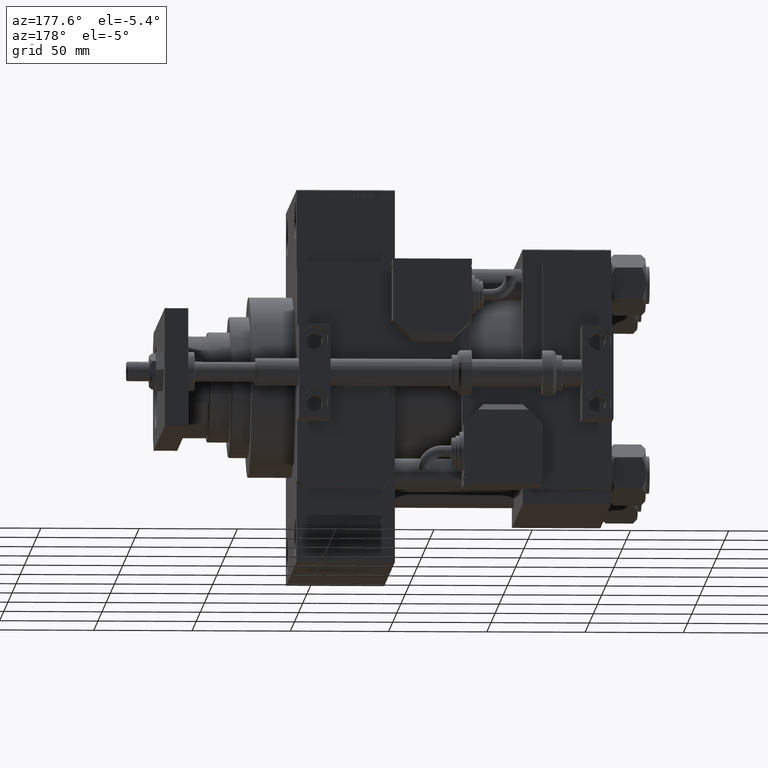
[diagram: clean part render]
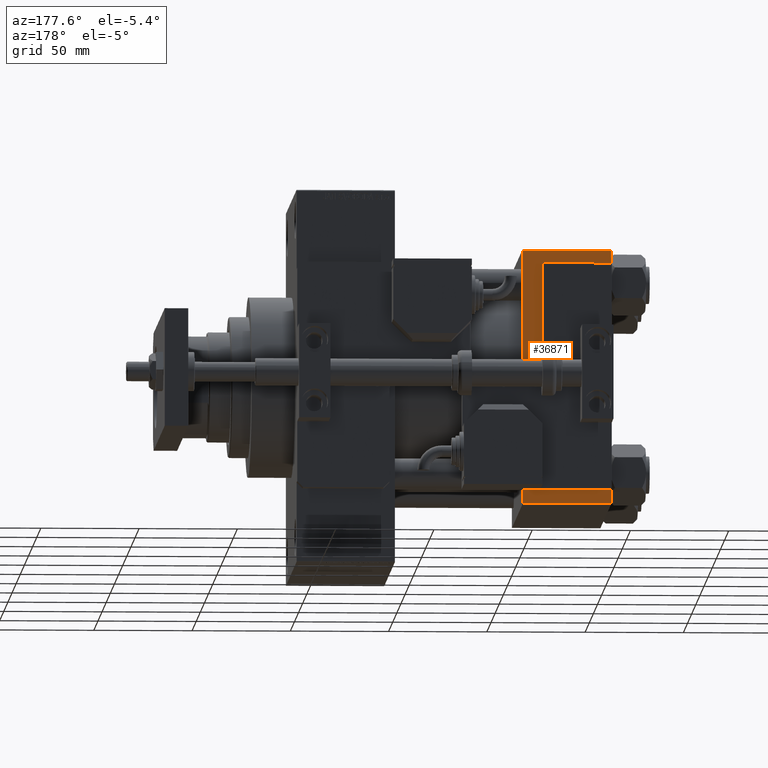
[diagram: same view with one face highlighted and labeled with its STEP entity id]
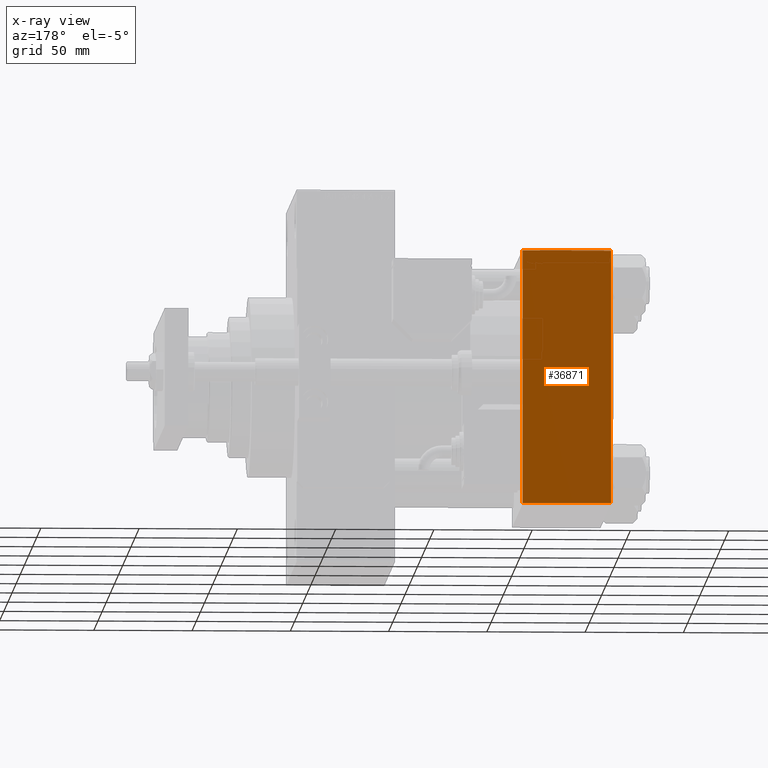
[diagram: x-ray of the same camera — body ghosted, the highlighted face saturated]
A machine part, auxiliary view. The second image highlights one B-rep face of the part: STEP entity #36871.
The next image is the same camera in x-ray: the body ghosted, the highlighted face saturated — about 0% of this face is hidden behind the body in this view.
In plain terms, the highlighted planar face has unit normal (0, 1, 0).
Its self-contained STEP definition (entity closure, byte-faithful):
#536 = ORIENTED_EDGE ( 'NONE', *, *, #31694, .F. ) ;
#1052 = CARTESIAN_POINT ( 'NONE',  ( 45.00000000000000000, 65.00000000000000000, 64.49999999999998579 ) ) ;
#1638 = ORIENTED_EDGE ( 'NONE', *, *, #30724, .T. ) ;
#1959 = DIRECTION ( 'NONE',  ( -0.000000000000000000, 1.000000000000000000, 0.000000000000000000 ) ) ;
#3937 = VERTEX_POINT ( 'NONE', #30090 ) ;
#4826 = CARTESIAN_POINT ( 'NONE',  ( 45.00000000000000000, 65.00000000000000000, 65.00000000000001421 ) ) ;
#7285 = LINE ( 'NONE', #39784, #35373 ) ;
#9726 = CARTESIAN_POINT ( 'NONE',  ( 0.000000000000000000, 65.00000000000000000, 64.49999999999998579 ) ) ;
#10815 = CARTESIAN_POINT ( 'NONE',  ( 45.00000000000000000, 65.00000000000000000, 64.49999999999998579 ) ) ;
#15113 = DIRECTION ( 'NONE',  ( -1.000000000000000000, 0.000000000000000000, 0.000000000000000000 ) ) ;
#17312 = DIRECTION ( 'NONE',  ( 0.000000000000000000, 0.000000000000000000, -1.000000000000000000 ) ) ;
#17436 = AXIS2_PLACEMENT_3D ( 'NONE', #39295, #1959, #51708 ) ;
#17471 = VERTEX_POINT ( 'NONE', #9726 ) ;
#18742 = EDGE_CURVE ( 'NONE', #17471, #27452, #30248, .T. ) ;
#20881 = FACE_OUTER_BOUND ( 'NONE', #45250, .T. ) ;
#22220 = VERTEX_POINT ( 'NONE', #40956 ) ;
#25394 = LINE ( 'NONE', #4826, #28491 ) ;
#25453 = LINE ( 'NONE', #41959, #27609 ) ;
#27452 = VERTEX_POINT ( 'NONE', #10815 ) ;
#27609 = VECTOR ( 'NONE', #17312, 1000.000000000000000 ) ;
#28491 = VECTOR ( 'NONE', #37331, 1000.000000000000000 ) ;
#29979 = DIRECTION ( 'NONE',  ( 1.000000000000000000, 0.000000000000000000, 0.000000000000000000 ) ) ;
#30090 = CARTESIAN_POINT ( 'NONE',  ( 0.000000000000000000, 65.00000000000000000, -64.49999999999995737 ) ) ;
#30248 = LINE ( 'NONE', #1052, #38600 ) ;
#30724 = EDGE_CURVE ( 'NONE', #22220, #3937, #7285, .T. ) ;
#31694 = EDGE_CURVE ( 'NONE', #17471, #3937, #25453, .T. ) ;
#32655 = ORIENTED_EDGE ( 'NONE', *, *, #32765, .T. ) ;
#32765 = EDGE_CURVE ( 'NONE', #27452, #22220, #25394, .T. ) ;
#35373 = VECTOR ( 'NONE', #15113, 1000.000000000000000 ) ;
#36871 = ADVANCED_FACE ( 'NONE', ( #20881 ), #37428, .T. ) ;
#37331 = DIRECTION ( 'NONE',  ( 0.000000000000000000, 0.000000000000000000, -1.000000000000000000 ) ) ;
#37428 = PLANE ( 'NONE',  #17436 ) ;
#38600 = VECTOR ( 'NONE', #29979, 1000.000000000000000 ) ;
#39295 = CARTESIAN_POINT ( 'NONE',  ( 45.00000000000000000, 65.00000000000000000, 65.00000000000001421 ) ) ;
#39784 = CARTESIAN_POINT ( 'NONE',  ( 45.00000000000000000, 65.00000000000000000, -64.49999999999995737 ) ) ;
#40956 = CARTESIAN_POINT ( 'NONE',  ( 45.00000000000000000, 65.00000000000000000, -64.49999999999995737 ) ) ;
#41553 = ORIENTED_EDGE ( 'NONE', *, *, #18742, .T. ) ;
#41959 = CARTESIAN_POINT ( 'NONE',  ( 0.000000000000000000, 65.00000000000000000, 65.00000000000001421 ) ) ;
#45250 = EDGE_LOOP ( 'NONE', ( #32655, #1638, #536, #41553 ) ) ;
#51708 = DIRECTION ( 'NONE',  ( 0.000000000000000000, -0.000000000000000000, 1.000000000000000000 ) ) ;